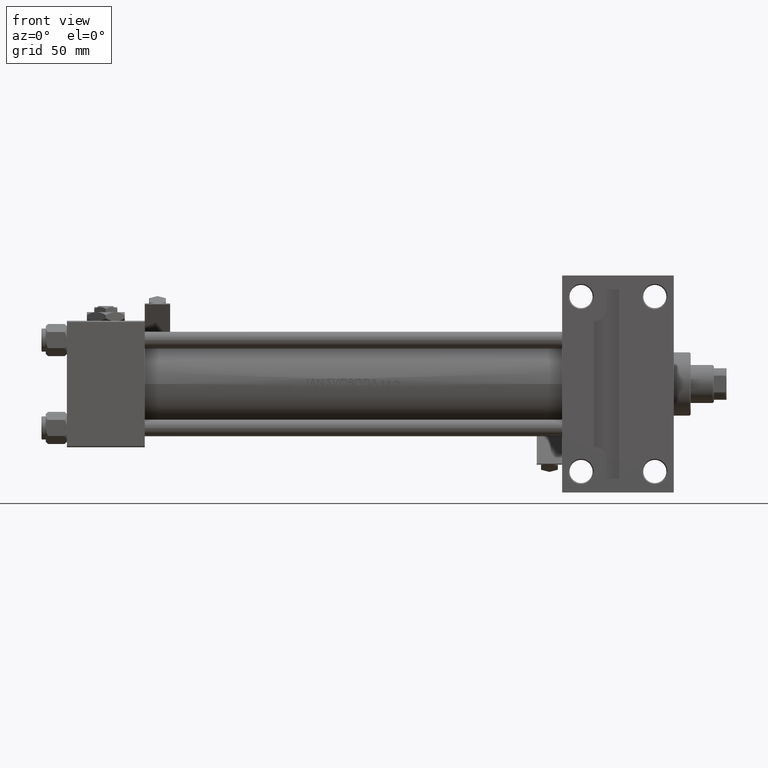
[diagram: clean part render]
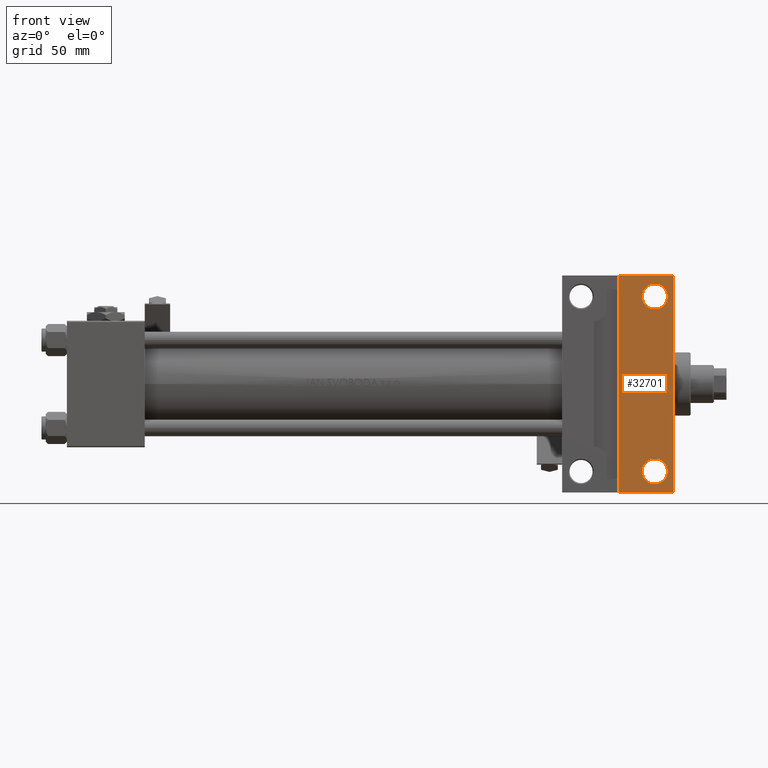
[diagram: same view with one face highlighted and labeled with its STEP entity id]
A machine part, front view. The second image highlights one B-rep face of the part: STEP entity #32701.
In plain terms, the highlighted planar face has unit normal (0, -1, -0).
Its self-contained STEP definition (entity closure, byte-faithful):
#9 = CARTESIAN_POINT ( 'NONE',  ( 288.0000000000000568, 30.00000000000000000, -29.99999999999999289 ) ) ;
#309 = VERTEX_POINT ( 'NONE', #8262 ) ;
#2357 = ORIENTED_EDGE ( 'NONE', *, *, #15860, .T. ) ;
#2453 = DIRECTION ( 'NONE',  ( 1.000000000000000000, -2.618450529776311274E-16, 0.000000000000000000 ) ) ;
#3102 = VERTEX_POINT ( 'NONE', #21704 ) ;
#3767 = EDGE_CURVE ( 'NONE', #309, #23818, #24044, .T. ) ;
#4224 = DIRECTION ( 'NONE',  ( 0.000000000000000000, 1.000000000000000000, 0.000000000000000000 ) ) ;
#4232 = ORIENTED_EDGE ( 'NONE', *, *, #43533, .T. ) ;
#5154 = VERTEX_POINT ( 'NONE', #51702 ) ;
#5338 = LINE ( 'NONE', #32822, #50280 ) ;
#5595 = DIRECTION ( 'NONE',  ( -1.000000000000000000, -0.000000000000000000, -0.000000000000000000 ) ) ;
#5735 = AXIS2_PLACEMENT_3D ( 'NONE', #47960, #39581, #4224 ) ;
#6297 = AXIS2_PLACEMENT_3D ( 'NONE', #9, #48176, #51097 ) ;
#6899 = CARTESIAN_POINT ( 'NONE',  ( 235.0000000000000284, 51.49999999999997868, -29.99999999999999645 ) ) ;
#7607 = FACE_BOUND ( 'NONE', #19505, .T. ) ;
#8262 = CARTESIAN_POINT ( 'NONE',  ( 273.0005000000001019, 41.50000000000000000, -29.99999999999999289 ) ) ;
#11605 = DIRECTION ( 'NONE',  ( -0.000000000000000000, -1.156482317317871478E-16, 1.000000000000000000 ) ) ;
#12982 = VECTOR ( 'NONE', #21714, 1000.000000000000000 ) ;
#13484 = VECTOR ( 'NONE', #2453, 1000.000000000000000 ) ;
#13501 = CARTESIAN_POINT ( 'NONE',  ( 279.0000000000000000, 41.50000000000000000, -29.99999999999999289 ) ) ;
#15860 = EDGE_CURVE ( 'NONE', #23818, #309, #35248, .T. ) ;
#17946 = DIRECTION ( 'NONE',  ( -0.000000000000000000, -1.156482317317871478E-16, 1.000000000000000000 ) ) ;
#19505 = EDGE_LOOP ( 'NONE', ( #44795, #4232 ) ) ;
#19907 = FACE_BOUND ( 'NONE', #39906, .T. ) ;
#20389 = VECTOR ( 'NONE', #38155, 1000.000000000000000 ) ;
#20616 = CARTESIAN_POINT ( 'NONE',  ( 288.0000000000000568, 51.49999999999996447, -29.99999999999999645 ) ) ;
#21033 = VERTEX_POINT ( 'NONE', #40678 ) ;
#21704 = CARTESIAN_POINT ( 'NONE',  ( 262.0000000000000000, 51.49999999999997868, -29.99999999999999645 ) ) ;
#21714 = DIRECTION ( 'NONE',  ( -0.000000000000000000, -1.000000000000000000, -0.000000000000000000 ) ) ;
#22001 = EDGE_CURVE ( 'NONE', #3102, #38082, #38311, .T. ) ;
#22124 = EDGE_CURVE ( 'NONE', #32501, #21033, #34366, .T. ) ;
#23577 = PLANE ( 'NONE',  #6297 ) ;
#23818 = VERTEX_POINT ( 'NONE', #30918 ) ;
#24044 = CIRCLE ( 'NONE', #24859, 5.999499999999962974 ) ;
#24859 = AXIS2_PLACEMENT_3D ( 'NONE', #44574, #35229, #47537 ) ;
#25505 = ORIENTED_EDGE ( 'NONE', *, *, #50273, .T. ) ;
#26053 = AXIS2_PLACEMENT_3D ( 'NONE', #13501, #17946, #29209 ) ;
#26764 = EDGE_LOOP ( 'NONE', ( #47237, #51206, #51323, #25505 ) ) ;
#27933 = EDGE_CURVE ( 'NONE', #38082, #51658, #33718, .T. ) ;
#29209 = DIRECTION ( 'NONE',  ( 0.000000000000000000, 1.000000000000000000, 0.000000000000000000 ) ) ;
#30918 = CARTESIAN_POINT ( 'NONE',  ( 284.9994999999999550, 41.50000000000000000, -29.99999999999999289 ) ) ;
#32501 = VERTEX_POINT ( 'NONE', #50836 ) ;
#32701 = ADVANCED_FACE ( 'NONE', ( #42964, #7607, #19907 ), #23577, .T. ) ;
#32822 = CARTESIAN_POINT ( 'NONE',  ( 235.0000000000000284, -51.50000000000002132, -29.99999999999999645 ) ) ;
#32879 = EDGE_CURVE ( 'NONE', #3102, #5154, #33753, .T. ) ;
#33718 = LINE ( 'NONE', #49707, #20389 ) ;
#33753 = LINE ( 'NONE', #42635, #12982 ) ;
#34366 = CIRCLE ( 'NONE', #49409, 5.999499999999962974 ) ;
#35229 = DIRECTION ( 'NONE',  ( -0.000000000000000000, -1.156482317317871478E-16, 1.000000000000000000 ) ) ;
#35248 = CIRCLE ( 'NONE', #26053, 5.999499999999962974 ) ;
#38082 = VERTEX_POINT ( 'NONE', #20616 ) ;
#38155 = DIRECTION ( 'NONE',  ( 0.000000000000000000, -1.000000000000000000, -1.156482317317871478E-16 ) ) ;
#38311 = LINE ( 'NONE', #6899, #13484 ) ;
#39581 = DIRECTION ( 'NONE',  ( -0.000000000000000000, -1.156482317317871478E-16, 1.000000000000000000 ) ) ;
#39612 = DIRECTION ( 'NONE',  ( 0.000000000000000000, 1.000000000000000000, 0.000000000000000000 ) ) ;
#39906 = EDGE_LOOP ( 'NONE', ( #40354, #2357 ) ) ;
#40119 = CARTESIAN_POINT ( 'NONE',  ( 279.0000000000000000, -41.50000000000000000, -30.00000000000000000 ) ) ;
#40354 = ORIENTED_EDGE ( 'NONE', *, *, #3767, .T. ) ;
#40668 = CARTESIAN_POINT ( 'NONE',  ( 288.0000000000000568, -51.50000000000002132, -29.99999999999999645 ) ) ;
#40678 = CARTESIAN_POINT ( 'NONE',  ( 284.9994999999999550, -41.50000000000000000, -30.00000000000000000 ) ) ;
#41672 = CIRCLE ( 'NONE', #5735, 5.999499999999962974 ) ;
#42635 = CARTESIAN_POINT ( 'NONE',  ( 262.0000000000000000, -51.49999999999997868, -29.99999999999999645 ) ) ;
#42964 = FACE_OUTER_BOUND ( 'NONE', #26764, .T. ) ;
#43533 = EDGE_CURVE ( 'NONE', #21033, #32501, #41672, .T. ) ;
#44574 = CARTESIAN_POINT ( 'NONE',  ( 279.0000000000000000, 41.50000000000000000, -29.99999999999999289 ) ) ;
#44795 = ORIENTED_EDGE ( 'NONE', *, *, #22124, .T. ) ;
#47237 = ORIENTED_EDGE ( 'NONE', *, *, #32879, .F. ) ;
#47537 = DIRECTION ( 'NONE',  ( 0.000000000000000000, 1.000000000000000000, 0.000000000000000000 ) ) ;
#47960 = CARTESIAN_POINT ( 'NONE',  ( 279.0000000000000000, -41.50000000000000000, -30.00000000000000000 ) ) ;
#48176 = DIRECTION ( 'NONE',  ( 0.000000000000000000, 1.156482317317871478E-16, -1.000000000000000000 ) ) ;
#49409 = AXIS2_PLACEMENT_3D ( 'NONE', #40119, #11605, #39612 ) ;
#49707 = CARTESIAN_POINT ( 'NONE',  ( 288.0000000000000568, 30.00000000000000000, -29.99999999999999289 ) ) ;
#50273 = EDGE_CURVE ( 'NONE', #51658, #5154, #5338, .T. ) ;
#50280 = VECTOR ( 'NONE', #5595, 1000.000000000000000 ) ;
#50836 = CARTESIAN_POINT ( 'NONE',  ( 273.0005000000001019, -41.50000000000000000, -30.00000000000000000 ) ) ;
#51097 = DIRECTION ( 'NONE',  ( 0.000000000000000000, 1.000000000000000000, 1.156482317317871478E-16 ) ) ;
#51206 = ORIENTED_EDGE ( 'NONE', *, *, #22001, .T. ) ;
#51323 = ORIENTED_EDGE ( 'NONE', *, *, #27933, .T. ) ;
#51658 = VERTEX_POINT ( 'NONE', #40668 ) ;
#51702 = CARTESIAN_POINT ( 'NONE',  ( 262.0000000000000000, -51.49999999999997868, -29.99999999999999645 ) ) ;